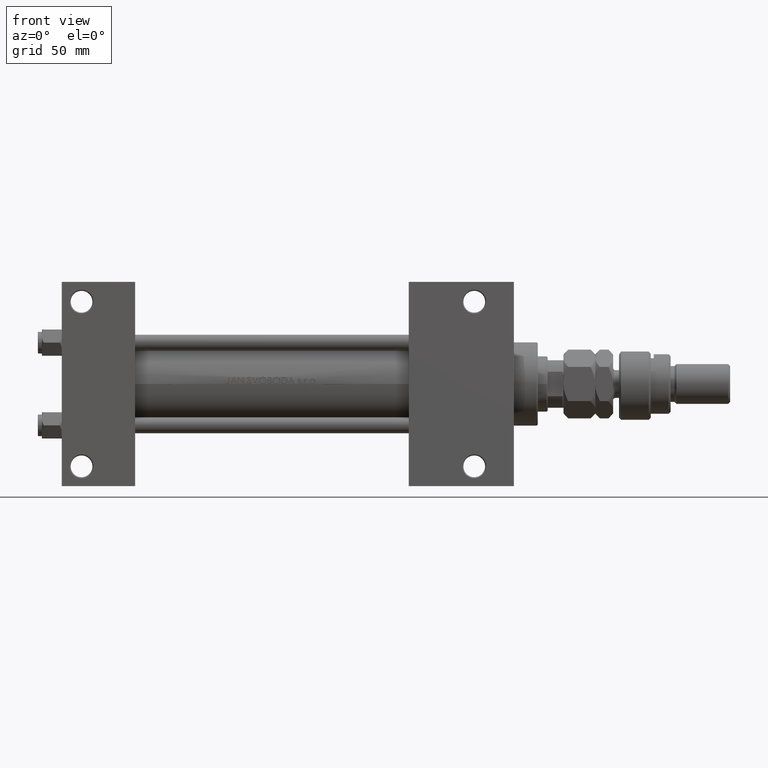
[diagram: clean part render]
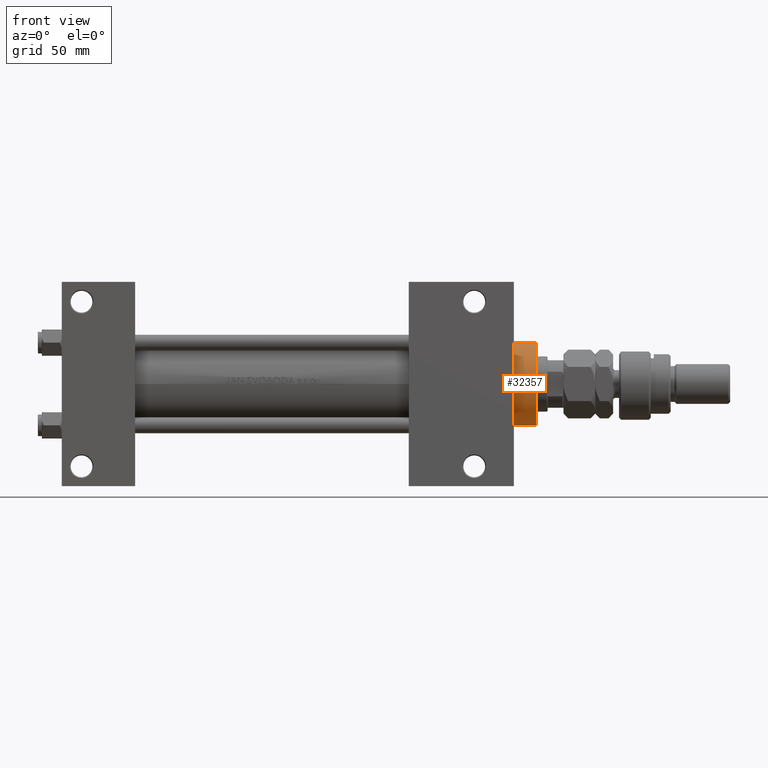
[diagram: same view with one face highlighted and labeled with its STEP entity id]
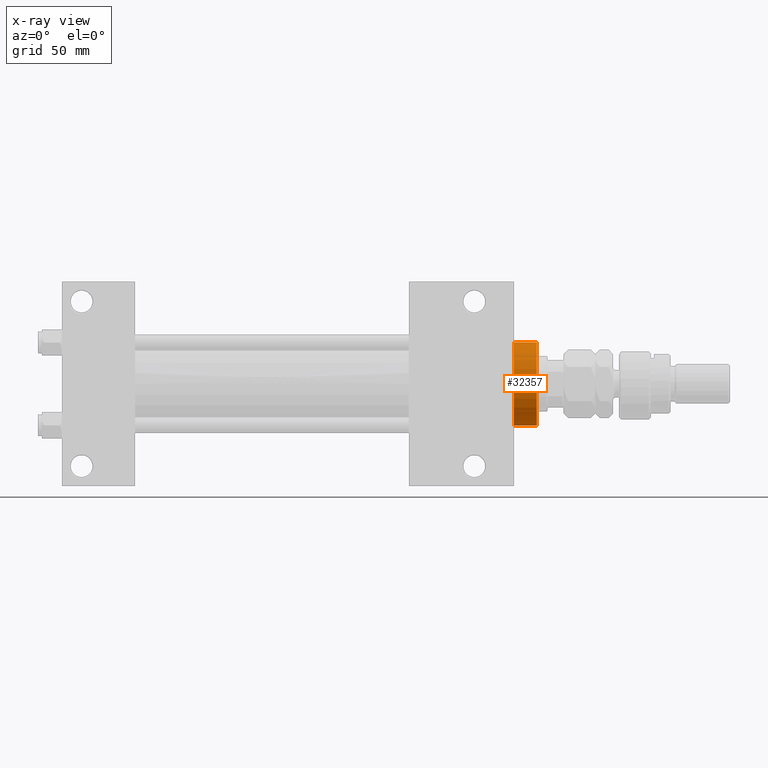
[diagram: x-ray of the same camera — body ghosted, the highlighted face saturated]
A machine part, front view. The second image highlights one B-rep face of the part: STEP entity #32357.
The next image is the same camera in x-ray: the body ghosted, the highlighted face saturated — about 0% of this face is hidden behind the body in this view.
In plain terms, the highlighted cylindrical surface (partial cylindrical patch) has radius 21 mm, axis along (-1, -0, 0).
Its self-contained STEP definition (entity closure, byte-faithful):
#1849 = DIRECTION ( 'NONE',  ( 1.000000000000000000, 0.000000000000000000, 0.000000000000000000 ) ) ;
#2513 = DIRECTION ( 'NONE',  ( 1.000000000000000000, 0.000000000000000000, 0.000000000000000000 ) ) ;
#4749 = CARTESIAN_POINT ( 'NONE',  ( 0.000000000000000000, 0.000000000000000000, 28.69999999999999929 ) ) ;
#5159 = CARTESIAN_POINT ( 'NONE',  ( -21.00000000000000000, 0.000000000000000000, 40.70000000000000284 ) ) ;
#5919 = DIRECTION ( 'NONE',  ( -0.000000000000000000, -0.000000000000000000, -1.000000000000000000 ) ) ;
#6139 = EDGE_CURVE ( 'NONE', #37321, #18268, #9374, .T. ) ;
#6926 = AXIS2_PLACEMENT_3D ( 'NONE', #34956, #40677, #32494 ) ;
#8538 = ORIENTED_EDGE ( 'NONE', *, *, #19259, .T. ) ;
#9374 = LINE ( 'NONE', #5159, #24049 ) ;
#10961 = CYLINDRICAL_SURFACE ( 'NONE', #6926, 21.00000000000000000 ) ;
#11631 = EDGE_CURVE ( 'NONE', #18268, #39319, #12486, .T. ) ;
#12486 = CIRCLE ( 'NONE', #31822, 21.00000000000000000 ) ;
#12566 = LINE ( 'NONE', #36556, #36193 ) ;
#15972 = EDGE_CURVE ( 'NONE', #40815, #39319, #12566, .T. ) ;
#18268 = VERTEX_POINT ( 'NONE', #40517 ) ;
#18649 = ORIENTED_EDGE ( 'NONE', *, *, #6139, .T. ) ;
#19259 = EDGE_CURVE ( 'NONE', #40815, #37321, #35218, .T. ) ;
#21700 = EDGE_LOOP ( 'NONE', ( #35939, #8538, #18649, #30886 ) ) ;
#24049 = VECTOR ( 'NONE', #5919, 1000.000000000000000 ) ;
#25821 = CARTESIAN_POINT ( 'NONE',  ( -21.00000000000000000, 0.000000000000000000, 40.19999999999998863 ) ) ;
#30886 = ORIENTED_EDGE ( 'NONE', *, *, #11631, .T. ) ;
#31822 = AXIS2_PLACEMENT_3D ( 'NONE', #4749, #41167, #1849 ) ;
#32357 = ADVANCED_FACE ( 'NONE', ( #51065 ), #10961, .T. ) ;
#32494 = DIRECTION ( 'NONE',  ( -1.000000000000000000, 0.000000000000000000, 0.000000000000000000 ) ) ;
#34943 = CARTESIAN_POINT ( 'NONE',  ( 0.000000000000000000, 0.000000000000000000, 40.19999999999998863 ) ) ;
#34956 = CARTESIAN_POINT ( 'NONE',  ( 0.000000000000000000, 0.000000000000000000, 40.70000000000000284 ) ) ;
#35218 = CIRCLE ( 'NONE', #41986, 21.00000000000000000 ) ;
#35939 = ORIENTED_EDGE ( 'NONE', *, *, #15972, .F. ) ;
#36193 = VECTOR ( 'NONE', #40261, 1000.000000000000000 ) ;
#36556 = CARTESIAN_POINT ( 'NONE',  ( 21.00000000000000000, 2.571758278209441661E-15, 40.70000000000000284 ) ) ;
#37259 = CARTESIAN_POINT ( 'NONE',  ( 21.00000000000000000, 2.571758278209441661E-15, 28.69999999999999929 ) ) ;
#37321 = VERTEX_POINT ( 'NONE', #25821 ) ;
#39319 = VERTEX_POINT ( 'NONE', #37259 ) ;
#40261 = DIRECTION ( 'NONE',  ( -0.000000000000000000, -0.000000000000000000, -1.000000000000000000 ) ) ;
#40517 = CARTESIAN_POINT ( 'NONE',  ( -21.00000000000000000, 0.000000000000000000, 28.69999999999999929 ) ) ;
#40677 = DIRECTION ( 'NONE',  ( -0.000000000000000000, -0.000000000000000000, -1.000000000000000000 ) ) ;
#40815 = VERTEX_POINT ( 'NONE', #44803 ) ;
#41167 = DIRECTION ( 'NONE',  ( 0.000000000000000000, 0.000000000000000000, 1.000000000000000000 ) ) ;
#41986 = AXIS2_PLACEMENT_3D ( 'NONE', #34943, #46577, #2513 ) ;
#44803 = CARTESIAN_POINT ( 'NONE',  ( 21.00000000000000000, 2.571758278209441661E-15, 40.19999999999998863 ) ) ;
#46577 = DIRECTION ( 'NONE',  ( 0.000000000000000000, 0.000000000000000000, -1.000000000000000000 ) ) ;
#51065 = FACE_OUTER_BOUND ( 'NONE', #21700, .T. ) ;